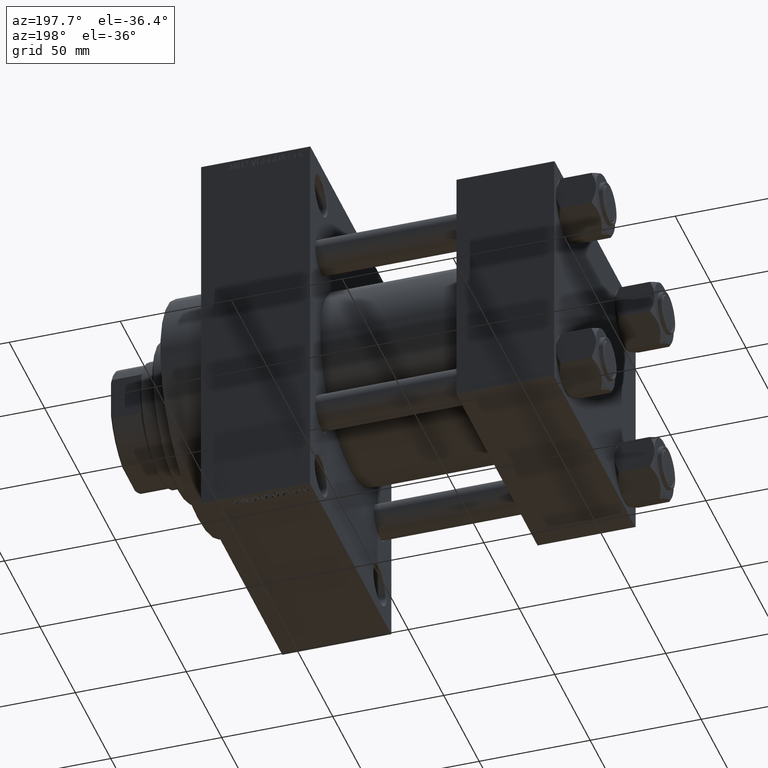
[diagram: clean part render]
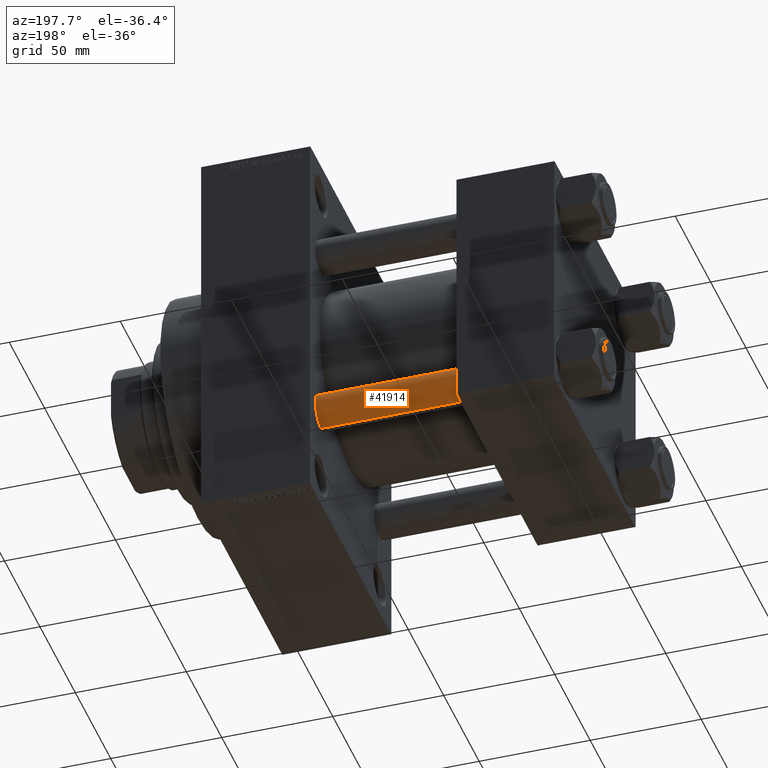
[diagram: same view with one face highlighted and labeled with its STEP entity id]
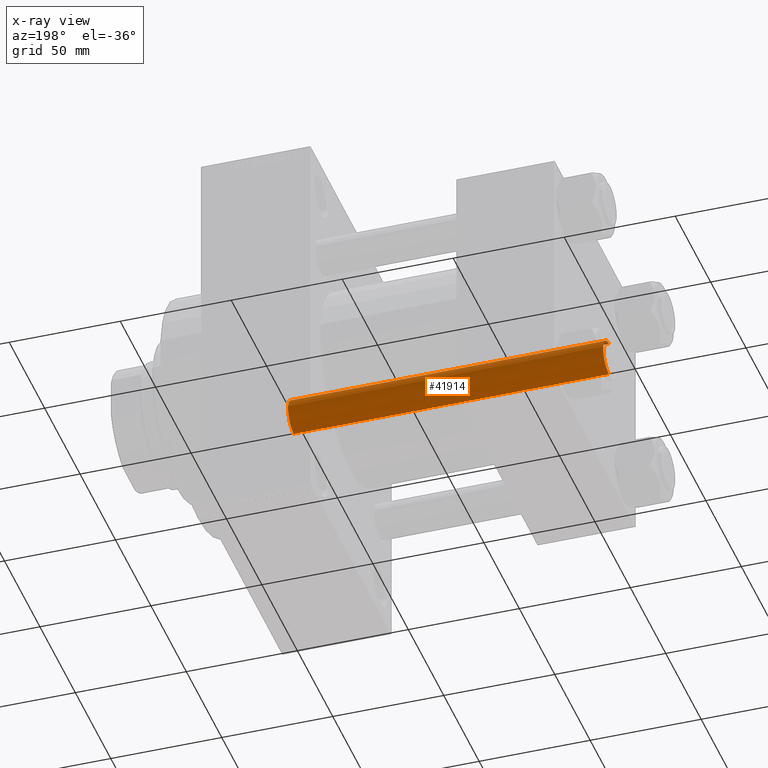
[diagram: x-ray of the same camera — body ghosted, the highlighted face saturated]
A machine part, auxiliary view. The second image highlights one B-rep face of the part: STEP entity #41914.
The next image is the same camera in x-ray: the body ghosted, the highlighted face saturated — about 0% of this face is hidden behind the body in this view.
In plain terms, the highlighted cylindrical surface (edge-blend (fillet) strip) has radius 8 mm, axis along (-1, -0, 0).
Its self-contained STEP definition (entity closure, byte-faithful):
#4611 = VERTEX_POINT ( 'NONE', #4669 ) ;
#4669 = CARTESIAN_POINT ( 'NONE',  ( 8.000000000000000000, 9.797174393178825657E-16, 142.4999999999999716 ) ) ;
#5946 = CIRCLE ( 'NONE', #39063, 8.000000000000000000 ) ;
#7505 = LINE ( 'NONE', #36462, #28823 ) ;
#8427 = FACE_OUTER_BOUND ( 'NONE', #40744, .T. ) ;
#11485 = CIRCLE ( 'NONE', #23008, 8.000000000000000000 ) ;
#11566 = CYLINDRICAL_SURFACE ( 'NONE', #26342, 8.000000000000000000 ) ;
#11820 = VERTEX_POINT ( 'NONE', #12498 ) ;
#12498 = CARTESIAN_POINT ( 'NONE',  ( -8.000000000000000000, 0.000000000000000000, 142.4999999999999716 ) ) ;
#14344 = DIRECTION ( 'NONE',  ( 0.000000000000000000, 0.000000000000000000, -1.000000000000000000 ) ) ;
#14407 = ORIENTED_EDGE ( 'NONE', *, *, #46903, .T. ) ;
#14634 = ORIENTED_EDGE ( 'NONE', *, *, #33736, .F. ) ;
#21511 = VERTEX_POINT ( 'NONE', #39278 ) ;
#21712 = CARTESIAN_POINT ( 'NONE',  ( 8.000000000000000000, 9.797174393178825657E-16, 0.4999999999999726885 ) ) ;
#22138 = VERTEX_POINT ( 'NONE', #21712 ) ;
#23008 = AXIS2_PLACEMENT_3D ( 'NONE', #26048, #44618, #40060 ) ;
#25786 = DIRECTION ( 'NONE',  ( -0.000000000000000000, -0.000000000000000000, -1.000000000000000000 ) ) ;
#26048 = CARTESIAN_POINT ( 'NONE',  ( 0.000000000000000000, 0.000000000000000000, 0.4999999999999726885 ) ) ;
#26342 = AXIS2_PLACEMENT_3D ( 'NONE', #30374, #37618, #37384 ) ;
#26570 = ORIENTED_EDGE ( 'NONE', *, *, #26593, .T. ) ;
#26593 = EDGE_CURVE ( 'NONE', #11820, #4611, #5946, .T. ) ;
#28823 = VECTOR ( 'NONE', #47297, 1000.000000000000000 ) ;
#29055 = DIRECTION ( 'NONE',  ( 1.000000000000000000, 0.000000000000000000, 0.000000000000000000 ) ) ;
#30013 = EDGE_CURVE ( 'NONE', #22138, #21511, #11485, .T. ) ;
#30374 = CARTESIAN_POINT ( 'NONE',  ( 0.000000000000000000, 0.000000000000000000, 143.0000000000000000 ) ) ;
#30864 = ORIENTED_EDGE ( 'NONE', *, *, #30013, .T. ) ;
#33736 = EDGE_CURVE ( 'NONE', #11820, #21511, #33744, .T. ) ;
#33744 = LINE ( 'NONE', #44114, #40086 ) ;
#36462 = CARTESIAN_POINT ( 'NONE',  ( 8.000000000000000000, 9.797174393178825657E-16, 143.0000000000000000 ) ) ;
#37384 = DIRECTION ( 'NONE',  ( -1.000000000000000000, 0.000000000000000000, 0.000000000000000000 ) ) ;
#37618 = DIRECTION ( 'NONE',  ( -0.000000000000000000, -0.000000000000000000, -1.000000000000000000 ) ) ;
#39063 = AXIS2_PLACEMENT_3D ( 'NONE', #43538, #14344, #29055 ) ;
#39278 = CARTESIAN_POINT ( 'NONE',  ( -8.000000000000000000, 0.000000000000000000, 0.4999999999999726885 ) ) ;
#40060 = DIRECTION ( 'NONE',  ( 1.000000000000000000, 0.000000000000000000, 0.000000000000000000 ) ) ;
#40086 = VECTOR ( 'NONE', #25786, 1000.000000000000000 ) ;
#40744 = EDGE_LOOP ( 'NONE', ( #26570, #14407, #30864, #14634 ) ) ;
#41914 = ADVANCED_FACE ( 'NONE', ( #8427 ), #11566, .T. ) ;
#43538 = CARTESIAN_POINT ( 'NONE',  ( 0.000000000000000000, 0.000000000000000000, 142.4999999999999716 ) ) ;
#44114 = CARTESIAN_POINT ( 'NONE',  ( -8.000000000000000000, 0.000000000000000000, 143.0000000000000000 ) ) ;
#44618 = DIRECTION ( 'NONE',  ( -0.000000000000000000, -0.000000000000000000, 1.000000000000000000 ) ) ;
#46903 = EDGE_CURVE ( 'NONE', #4611, #22138, #7505, .T. ) ;
#47297 = DIRECTION ( 'NONE',  ( -0.000000000000000000, -0.000000000000000000, -1.000000000000000000 ) ) ;